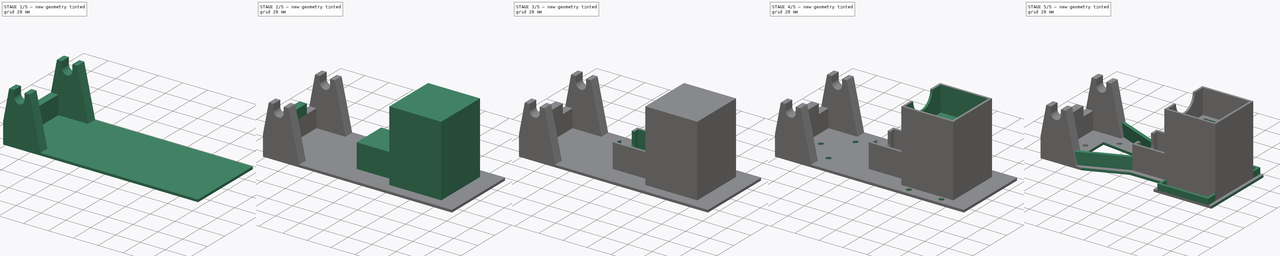
[diagram: build sequence overview — one tinted view per stage of 5, left to right]
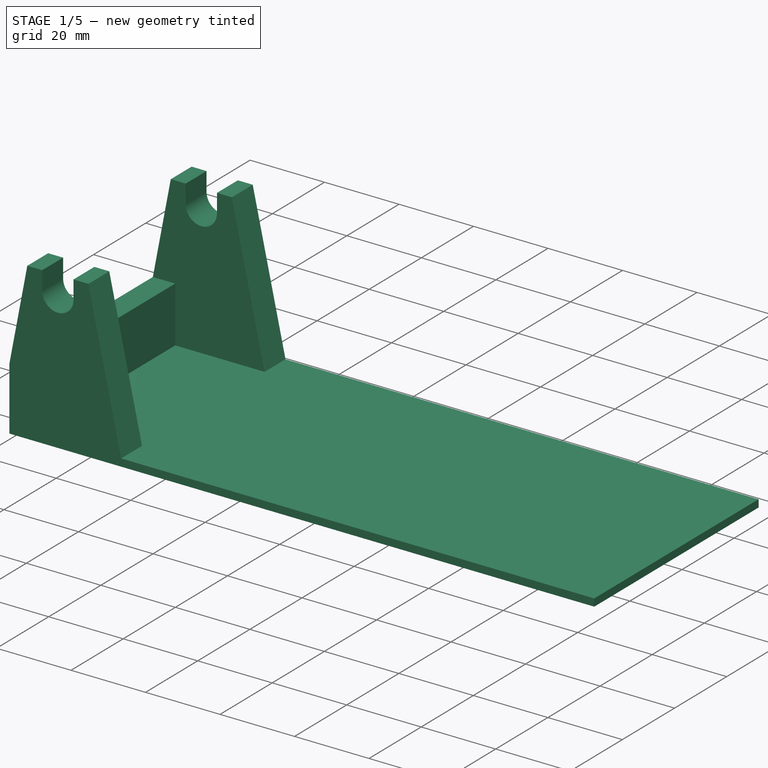
[diagram: stage 1 of 5 — iso view after this stage's code; geometry added in this stage tinted green]
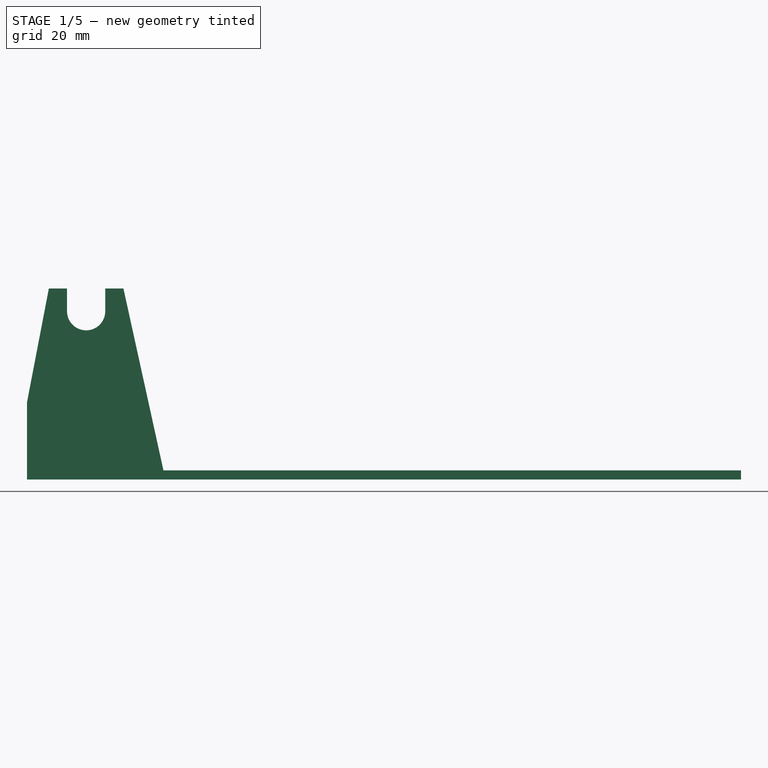
[diagram: stage 1 of 5 — front view after this stage's code; geometry added in this stage tinted green]
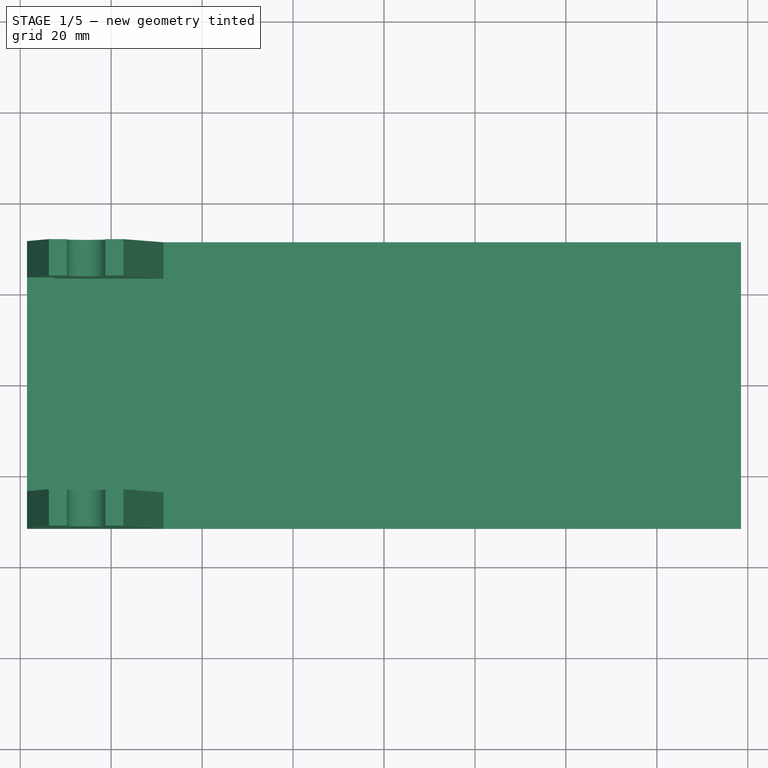
[diagram: stage 1 of 5 — top view after this stage's code; geometry added in this stage tinted green]
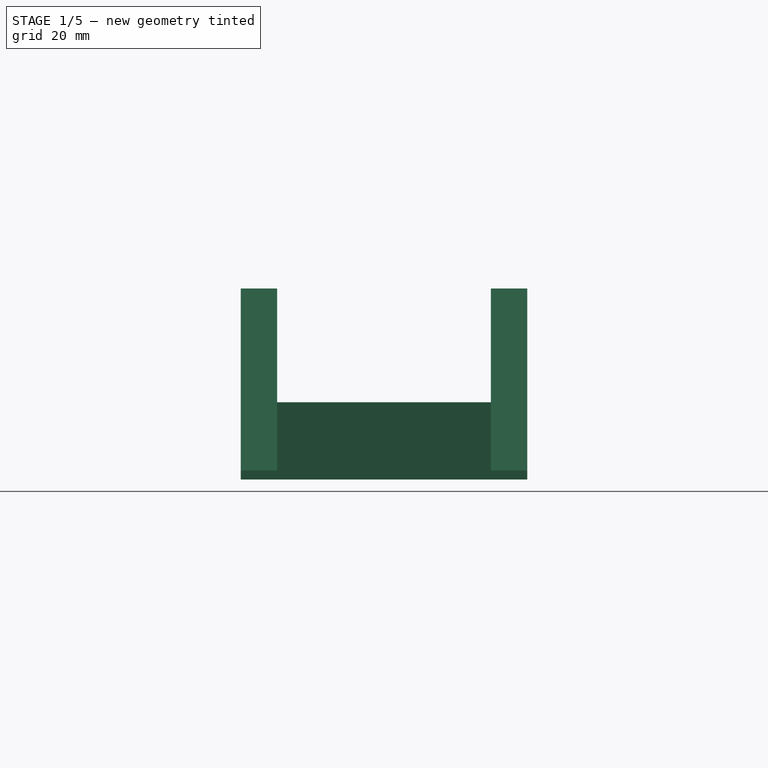
[diagram: stage 1 of 5 — right view after this stage's code; geometry added in this stage tinted green]
FCSTD DOCUMENT  (FreeCAD 0.15R4671 (Git))
Label: Assembly Tray
License: All rights reserved
LicenseURL: http://en.wikipedia.org/wiki/All_rights_reserved
objects: Sketcher::SketchObject×18, PartDesign::Pad×9, PartDesign::Pocket×9
note: 54 computed .brp shape members not serialized (recipe doc carries the construction recipe); baked Part::Feature solids carry a one-line shape summary decoded from their .brp

FEATURE [Sketcher::SketchObject] Sketch
  sketch-geometry (4):
    g0: LineSegment StartX=-78.5 StartY=31.5 StartZ=0 EndX=78.5 EndY=31.5 EndZ=0
    g1: LineSegment StartX=78.5 StartY=31.5 StartZ=0 EndX=78.5 EndY=-31.5 EndZ=0
    g2: LineSegment StartX=78.5 StartY=-31.5 StartZ=0 EndX=-78.5 EndY=-31.5 EndZ=0
    g3: LineSegment StartX=-78.5 StartY=-31.5 StartZ=0 EndX=-78.5 EndY=31.5 EndZ=0
  constraints (12):
    c: Coincident(g0,g1)
    c: Coincident(g1,g2)
    c: Coincident(g2,g3)
    c: Coincident(g3,g0)
    c: Horizontal(g0)
    c: Horizontal(g2)
    c: Vertical(g1)
    c: Vertical(g3)
    c: Symmetric(g0,g2,g-1)
    c: Symmetric(g0,g0,g-2)
    c: DistanceY(g3) = 63
    c: DistanceX(g0) = 157
FEATURE [PartDesign::Pad] Pad
  Length = 2
  Length2 = 100
  Sketch = -> Sketch
  Type = 0
FEATURE [Sketcher::SketchObject] Sketch001
  ExternalGeometry = -> [Pad]
  Placement = pos=(0,0,2) rot=(0,0,1;0rad)
  Support = -> Pad [Face6]
  sketch-geometry (8):
    g0: LineSegment StartX=-78.5 StartY=31.5 StartZ=0 EndX=-48.5 EndY=31.5 EndZ=0
    g1: LineSegment StartX=-48.5 StartY=31.5 StartZ=0 EndX=-48.5 EndY=23.5 EndZ=0
    g2: LineSegment StartX=-48.5 StartY=23.5 StartZ=0 EndX=-78.5 EndY=23.5 EndZ=0
    g3: LineSegment StartX=-78.5 StartY=23.5 StartZ=0 EndX=-78.5 EndY=31.5 EndZ=0
    g4: LineSegment StartX=-78.5 StartY=-23.5 StartZ=0 EndX=-48.5 EndY=-23.5 EndZ=0
    g5: LineSegment StartX=-48.5 StartY=-23.5 StartZ=0 EndX=-48.5 EndY=-31.5 EndZ=0
    g6: LineSegment StartX=-48.5 StartY=-31.5 StartZ=0 EndX=-78.5 EndY=-31.5 EndZ=0
    g7: LineSegment StartX=-78.5 StartY=-31.5 StartZ=0 EndX=-78.5 EndY=-23.5 EndZ=0
  constraints (23):
    c: Coincident(g0,g1)
    c: Coincident(g1,g2)
    c: Coincident(g2,g3)
    c: Coincident(g3,g0)
    c: Horizontal(g0)
    c: Horizontal(g2)
    c: Vertical(g1)
    c: Vertical(g3)
    c: Coincident(g4,g5)
    c: Coincident(g5,g6)
    c: Coincident(g6,g7)
    c: Coincident(g7,g4)
    c: Horizontal(g4)
    c: Horizontal(g6)
    c: Vertical(g5)
    c: Vertical(g7)
    c: Equal(g4,g2)
    c: Equal(g1,g5)
    c: Symmetric(g1,g4,g-1)
    c: DistanceY(g1) = -8
    c: DistanceY(g1,g4) = -47
    c: DistanceX(g0) = 30
    c: PointOnObject(g0,g-3)
FEATURE [PartDesign::Pad] Pad001
  Length = 40
  Length2 = 100
  Sketch = -> Sketch001
  Type = 0
FEATURE [Sketcher::SketchObject] Sketch002
  ExternalGeometry = -> [Pad001]
  Placement = pos=(0,0,2) rot=(0,0,1;0rad)
  Support = -> Pad001 [Face7]
  sketch-geometry (4):
    g0: LineSegment StartX=-78.5 StartY=23.5 StartZ=0 EndX=-72.5 EndY=23.5 EndZ=0
    g1: LineSegment StartX=-72.5 StartY=23.5 StartZ=0 EndX=-72.5 EndY=-23.5 EndZ=0
    g2: LineSegment StartX=-72.5 StartY=-23.5 StartZ=0 EndX=-78.5 EndY=-23.5 EndZ=0
    g3: LineSegment StartX=-78.5 StartY=-23.5 StartZ=0 EndX=-78.5 EndY=23.5 EndZ=0
  constraints (11):
    c: Coincident(g0,g1)
    c: Coincident(g1,g2)
    c: Coincident(g2,g3)
    c: Coincident(g3,g0)
    c: Horizontal(g0)
    c: Horizontal(g2)
    c: Vertical(g1)
    c: Vertical(g3)
    c: Coincident(g0,g-4)
    c: PointOnObject(g1,g-5)
    c: DistanceX(g2) = -6
FEATURE [PartDesign::Pad] Pad002
  Length = 15
  Length2 = 100
  Sketch = -> Sketch002
  Type = 0
FEATURE [Sketcher::SketchObject] Sketch004
  Placement = pos=(0,-31.5,0) rot=(1,0,0;1.5708rad)
  Support = -> Pad002 [Face8]
  sketch-geometry (10):
    g0: LineSegment StartX=-69.7 StartY=42 StartZ=0 EndX=-69.7 EndY=37 EndZ=0
    g1: LineSegment StartX=-69.7 StartY=42 StartZ=0 EndX=-61.3 EndY=42 EndZ=0
    g2: LineSegment StartX=-61.3 StartY=42 StartZ=0 EndX=-61.3 EndY=37 EndZ=0
    g3: ArcOfCircle CenterX=-65.5 CenterY=37 CenterZ=0 NormalX=0 NormalY=0 NormalZ=1 Radius=4.2 StartAngle=3.14159 EndAngle=6.28318
    g4: LineSegment StartX=-57.3 StartY=42 StartZ=0 EndX=-48.5 EndY=2 EndZ=0
    g5: LineSegment StartX=-48.5 StartY=2 StartZ=0 EndX=-48.5 EndY=42 EndZ=0
    g6: LineSegment StartX=-48.5 StartY=42 StartZ=0 EndX=-57.3 EndY=42 EndZ=0
    g7: LineSegment StartX=-73.7 StartY=42 StartZ=0 EndX=-78.5 EndY=17 EndZ=0
    g8: LineSegment StartX=-78.5 StartY=17 StartZ=0 EndX=-78.5 EndY=42 EndZ=0
    g9: LineSegment StartX=-78.5 StartY=42 StartZ=0 EndX=-73.7 EndY=42 EndZ=0
  constraints (20):
    c: Vertical(g0)
    c: Coincident(g1,g0)
    c: Coincident(g2,g1)
    c: Vertical(g2)
    c: Coincident(g3,g2)
    c: Coincident(g3,g0)
    c: Tangent(g3,g2)
    c: Tangent(g3,g0)
    c: Radius(g3) = 4.2
    c: DistanceY(g3,g1) = 5
    c: Coincident(g4,g5)
    c: Vertical(g5)
    c: Coincident(g5,g6)
    c: Coincident(g6,g4)
    c: Coincident(g7,g8)
    c: Vertical(g8)
    c: Coincident(g8,g9)
    c: Coincident(g9,g7)
    c: DistanceX(g0,g7) = -4
    c: DistanceX(g1,g4) = 4
FEATURE [PartDesign::Pocket] Pocket
  Length = 5
  Sketch = -> Sketch004
  Type = 1
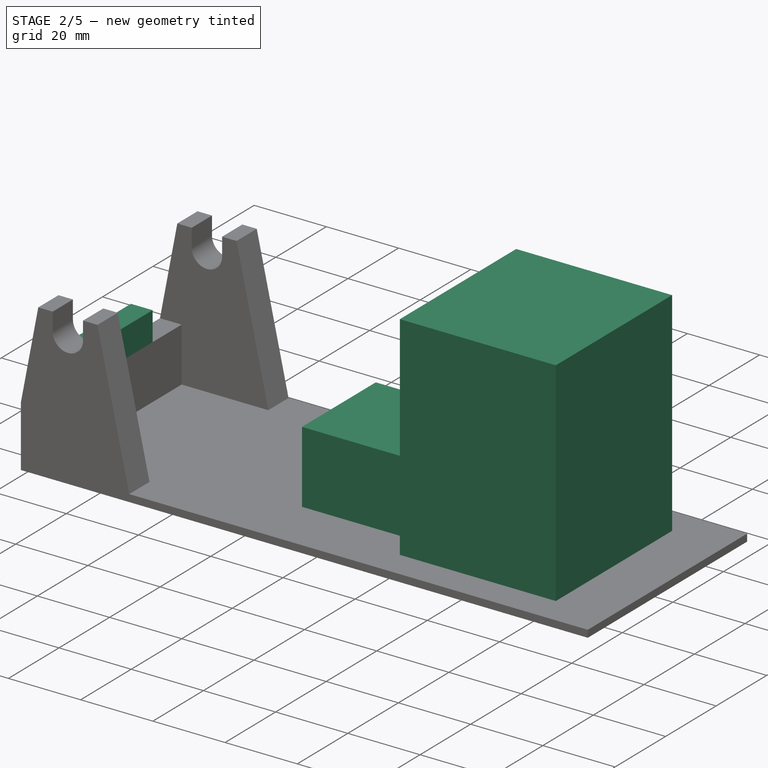
[diagram: stage 2 of 5 — iso view after this stage's code; geometry added in this stage tinted green]
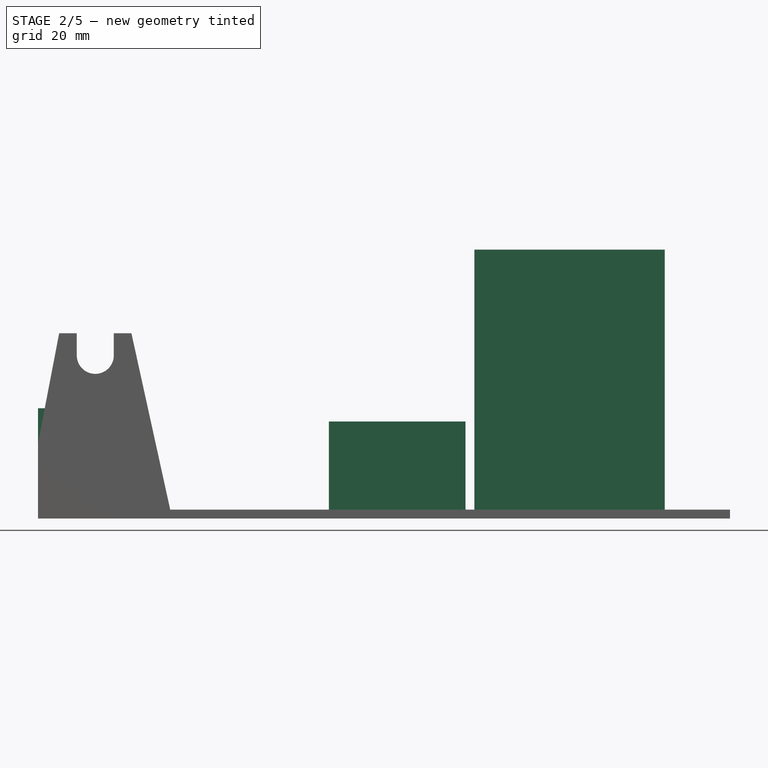
[diagram: stage 2 of 5 — front view after this stage's code; geometry added in this stage tinted green]
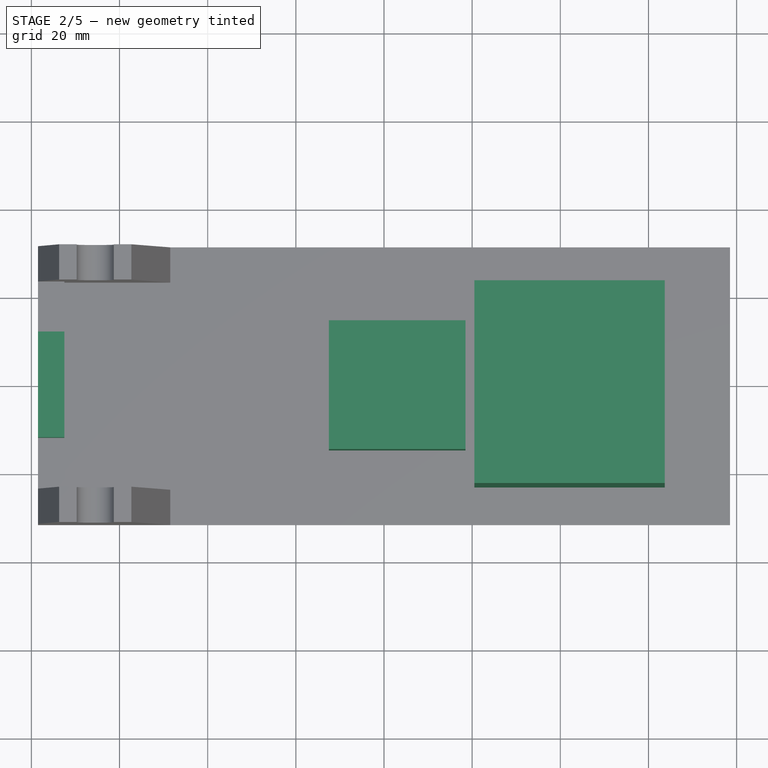
[diagram: stage 2 of 5 — top view after this stage's code; geometry added in this stage tinted green]
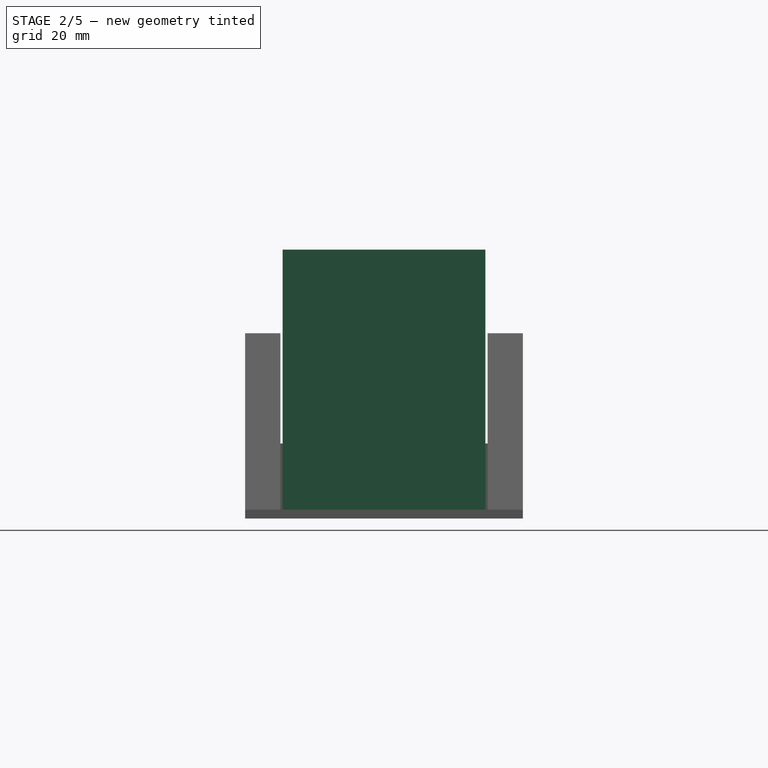
[diagram: stage 2 of 5 — right view after this stage's code; geometry added in this stage tinted green]
FEATURE [Sketcher::SketchObject] Sketch003
  ExternalGeometry = -> [Pad002]
  Placement = pos=(0,0,17) rot=(0,0,1;0rad)
  Support = -> Pocket [Face27]
  sketch-geometry (4):
    g0: LineSegment StartX=-78.5 StartY=12 StartZ=0 EndX=-72.5 EndY=12 EndZ=0
    g1: LineSegment StartX=-72.5 StartY=12 StartZ=0 EndX=-72.5 EndY=-12 EndZ=0
    g2: LineSegment StartX=-72.5 StartY=-12 StartZ=0 EndX=-78.5 EndY=-12 EndZ=0
    g3: LineSegment StartX=-78.5 StartY=-12 StartZ=0 EndX=-78.5 EndY=12 EndZ=0
  constraints (12):
    c: Coincident(g0,g1)
    c: Coincident(g1,g2)
    c: Coincident(g2,g3)
    c: Coincident(g3,g0)
    c: Horizontal(g0)
    c: Horizontal(g2)
    c: Vertical(g1)
    c: Vertical(g3)
    c: PointOnObject(g0,g-3)
    c: PointOnObject(g1,g-5)
    c: Symmetric(g1,g0,g-1)
    c: DistanceY(g3) = 24
FEATURE [PartDesign::Pad] Pad003
  Length = 8
  Length2 = 100
  Sketch = -> Sketch003
  Type = 0
FEATURE [Sketcher::SketchObject] Sketch005
  ExternalGeometry = -> [Pad003]
  Placement = pos=(0,0,2) rot=(0,0,1;0rad)
  Support = -> Pad003 [Face7]
  sketch-geometry (10):
    g0: LineSegment StartX=-12.5 StartY=14.6 StartZ=0 EndX=18.5 EndY=14.6 EndZ=0
    g1: LineSegment StartX=18.5 StartY=14.6 StartZ=0 EndX=18.5 EndY=-14.6 EndZ=0
    g2: LineSegment StartX=18.5 StartY=-14.6 StartZ=0 EndX=-12.5 EndY=-14.6 EndZ=0
    g3: LineSegment StartX=-12.5 StartY=-14.6 StartZ=0 EndX=-12.5 EndY=14.6 EndZ=0
    g4: LineSegment [constr] StartX=-69.7 StartY=23.5 StartZ=0 EndX=-65.5 EndY=23.5 EndZ=0
    g5: LineSegment [constr] StartX=-65.5 StartY=23.5 StartZ=0 EndX=-61.3 EndY=23.5 EndZ=0
    g6: LineSegment [constr] StartX=-10.5 StartY=12.6 StartZ=0 EndX=-10.5 EndY=-12.6 EndZ=0
    g7: LineSegment [constr] StartX=-10.5 StartY=12.6 StartZ=0 EndX=16.5 EndY=12.6 EndZ=0
    g8: LineSegment [constr] StartX=16.5 StartY=12.6 StartZ=0 EndX=16.5 EndY=-12.6 EndZ=0
    g9: LineSegment [constr] StartX=16.5 StartY=-12.6 StartZ=0 EndX=-10.5 EndY=-12.6 EndZ=0
  constraints (29):
    c: Coincident(g0,g1)
    c: Coincident(g1,g2)
    c: Coincident(g2,g3)
    c: Coincident(g3,g0)
    c: Horizontal(g0)
    c: Horizontal(g2)
    c: Vertical(g1)
    c: Vertical(g3)
    c: Coincident(g4,g-3)
    c: Coincident(g5,g4)
    c: Coincident(g5,g-4)
    c: Horizontal(g5)
    c: Equal(g4,g5)
    c: Symmetric(g2,g0,g-1)
    c: Vertical(g6)
    c: Symmetric(g6,g6,g-1)
    c: Distance(g6) = 25.2
    c: DistanceX(g4,g6) = 55
    c: DistanceX(g6,g2) = -2
    c: Horizontal(g7)
    c: Coincident(g8,g7)
    c: Vertical(g8)
    c: Coincident(g9,g8)
    c: Coincident(g9,g6)
    c: Horizontal(g9)
    c: DistanceX(g7) = 27
    c: Coincident(g7,g6)
    c: DistanceX(g7,g0) = 2
    c: DistanceY(g7,g0) = 2
FEATURE [PartDesign::Pad] Pad004
  Length = 20
  Length2 = 100
  Sketch = -> Sketch005
  Type = 0
FEATURE [Sketcher::SketchObject] Sketch006
  ExternalGeometry = -> [Pad004]
  Placement = pos=(0,0,2) rot=(0,0,1;0rad)
  Support = -> Pad004 [Face7]
  sketch-geometry (10):
    g0: LineSegment [constr] StartX=-69.7 StartY=23.5 StartZ=0 EndX=-65.5 EndY=23.5 EndZ=0
    g1: LineSegment [constr] StartX=-65.5 StartY=23.5 StartZ=0 EndX=-61.3 EndY=23.5 EndZ=0
    g2: LineSegment [constr] StartX=22.5 StartY=21 StartZ=0 EndX=61.7 EndY=21 EndZ=0
    g3: LineSegment [constr] StartX=61.7 StartY=21 StartZ=0 EndX=61.7 EndY=-21 EndZ=0
    g4: LineSegment [constr] StartX=61.7 StartY=-21 StartZ=0 EndX=22.5 EndY=-21 EndZ=0
    g5: LineSegment [constr] StartX=22.5 StartY=-21 StartZ=0 EndX=22.5 EndY=21 EndZ=0
    g6: LineSegment StartX=20.5 StartY=23 StartZ=0 EndX=63.7 EndY=23 EndZ=0
    g7: LineSegment StartX=63.7 StartY=23 StartZ=0 EndX=63.7 EndY=-23 EndZ=0
    g8: LineSegment StartX=63.7 StartY=-23 StartZ=0 EndX=20.5 EndY=-23 EndZ=0
    g9: LineSegment StartX=20.5 StartY=-23 StartZ=0 EndX=20.5 EndY=23 EndZ=0
  constraints (29):
    c: Coincident(g0,g-3)
    c: Horizontal(g0)
    c: Coincident(g1,g0)
    c: Coincident(g1,g-4)
    c: Equal(g0,g1)
    c: Coincident(g2,g3)
    c: Coincident(g3,g4)
    c: Coincident(g4,g5)
    c: Coincident(g5,g2)
    c: Horizontal(g2)
    c: Horizontal(g4)
    c: Vertical(g3)
    c: Vertical(g5)
    c: DistanceX(g2) = 39.2
    c: Symmetric(g2,g4,g-1)
    c: DistanceY(g5) = 42
    c: DistanceX(g2,g0) = -88
    c: Coincident(g6,g7)
    c: Coincident(g7,g8)
    c: Coincident(g8,g9)
    c: Coincident(g9,g6)
    c: Horizontal(g6)
    c: Horizontal(g8)
    c: Vertical(g7)
    c: Vertical(g9)
    c: DistanceY(g2,g6) = 2
    c: DistanceX(g2,g6) = 2
    c: DistanceY(g8,g4) = 2
    c: DistanceX(g8,g4) = 2
FEATURE [PartDesign::Pad] Pad005
  Length = 59
  Length2 = 100
  Sketch = -> Sketch006
  Type = 0
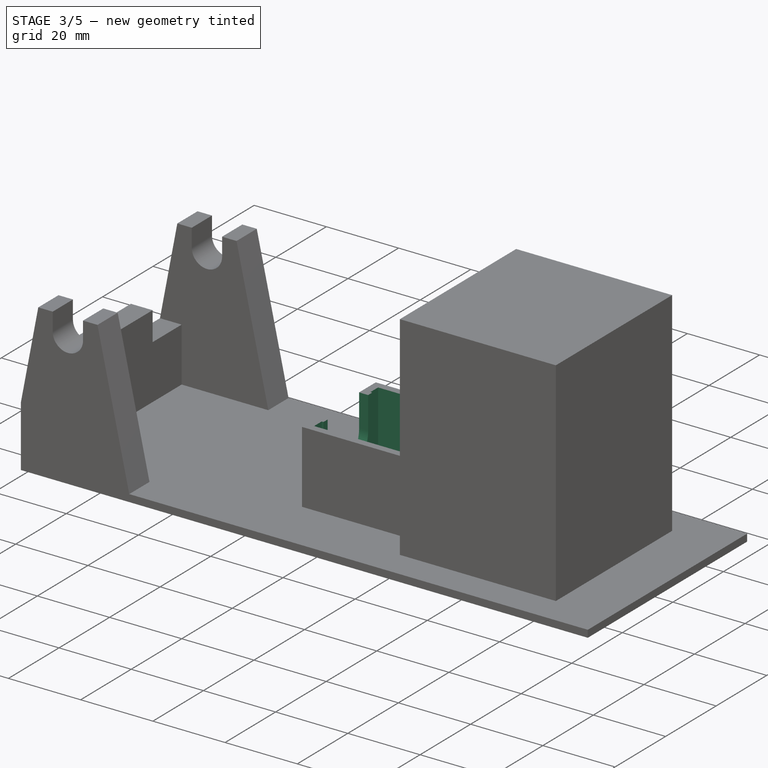
[diagram: stage 3 of 5 — iso view after this stage's code; geometry added in this stage tinted green]
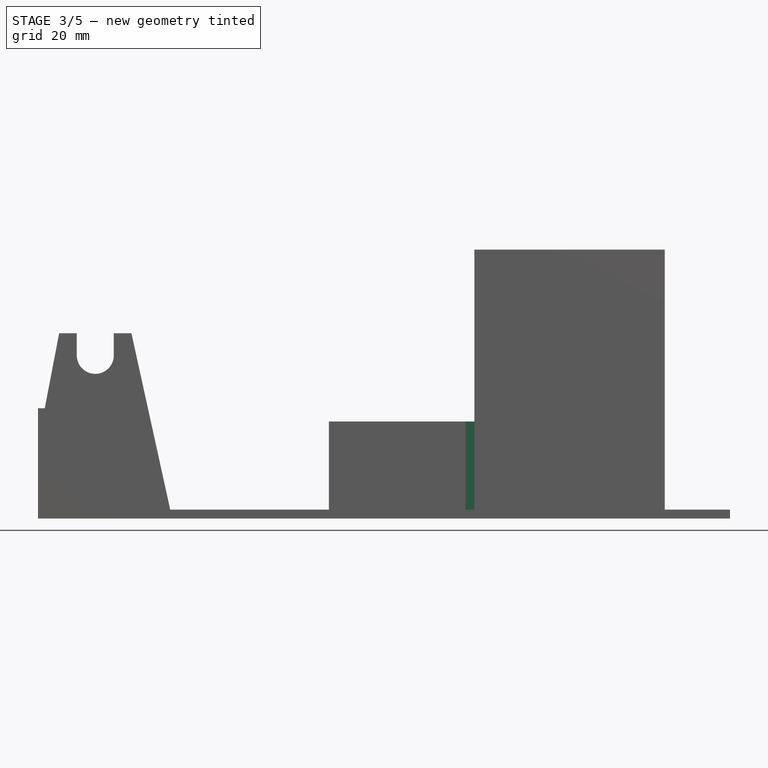
[diagram: stage 3 of 5 — front view after this stage's code; geometry added in this stage tinted green]
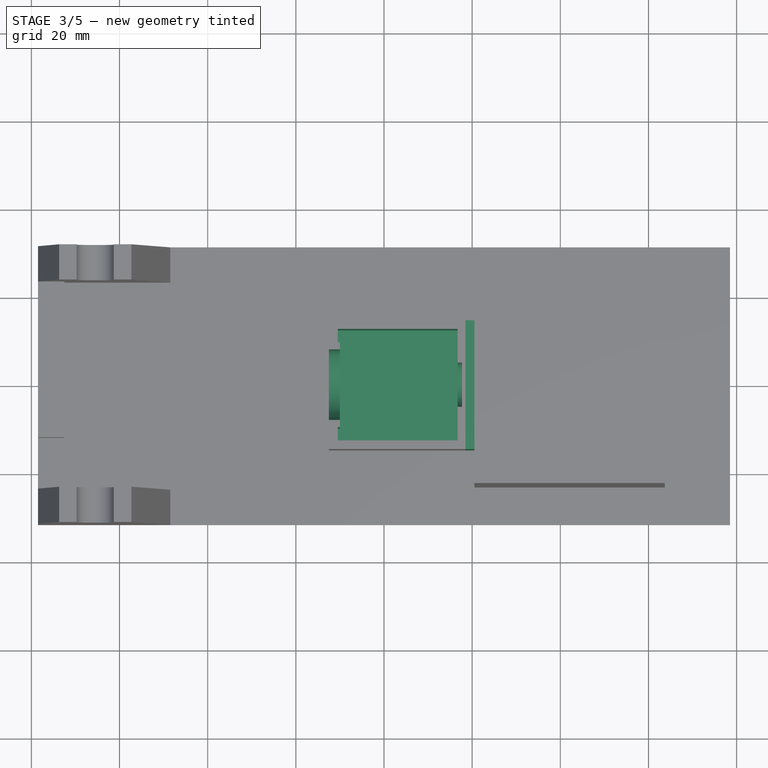
[diagram: stage 3 of 5 — top view after this stage's code; geometry added in this stage tinted green]
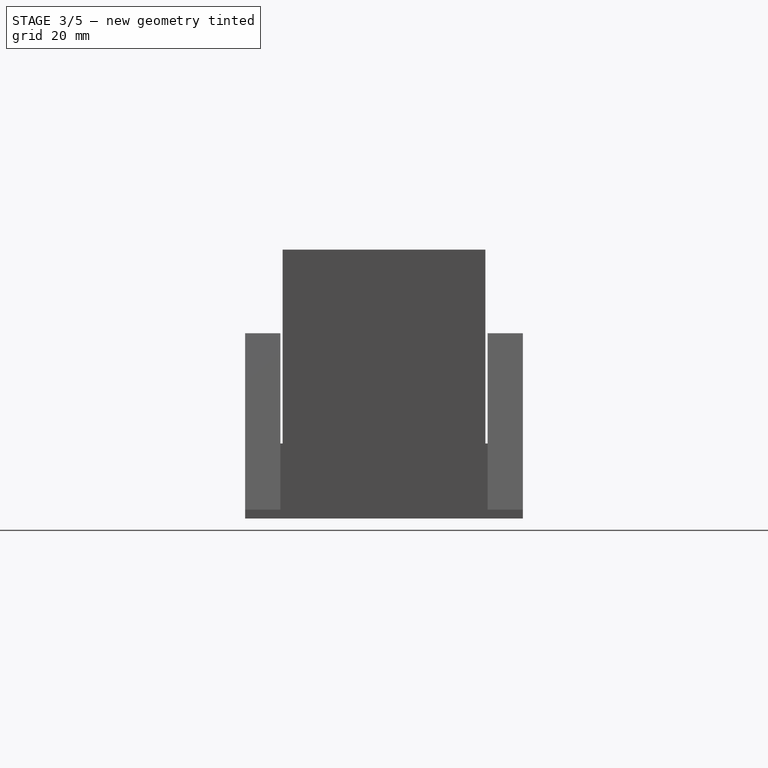
[diagram: stage 3 of 5 — right view after this stage's code; geometry added in this stage tinted green]
FEATURE [Sketcher::SketchObject] Sketch007
  ExternalGeometry = -> [Pad003]
  Placement = pos=(0,0,22) rot=(0,0,1;0rad)
  Support = -> Pad005 [Face42]
  sketch-geometry (14):
    g0: LineSegment [constr] StartX=-69.7 StartY=23.5 StartZ=0 EndX=-65.5 EndY=23.5 EndZ=0
    g1: LineSegment [constr] StartX=-65.5 StartY=23.5 StartZ=0 EndX=-61.3 EndY=23.5 EndZ=0
    g2: LineSegment [constr] StartX=-10.5 StartY=12.65 StartZ=0 EndX=-10.5 EndY=-12.65 EndZ=0
    g3: LineSegment [constr] StartX=-10.5 StartY=12.65 StartZ=0 EndX=16.7 EndY=12.65 EndZ=0
    g4: LineSegment [constr] StartX=16.7 StartY=12.65 StartZ=0 EndX=16.7 EndY=-12.65 EndZ=0
    g5: LineSegment [constr] StartX=16.7 StartY=-12.65 StartZ=0 EndX=-10.5 EndY=-12.65 EndZ=0
    g6: LineSegment StartX=-10.5 StartY=12.65 StartZ=0 EndX=-10.5 EndY=9.65 EndZ=0
    g7: LineSegment StartX=-10.5 StartY=9.65 StartZ=0 EndX=-10 EndY=9.65 EndZ=0
    g8: LineSegment StartX=-10 StartY=9.65 StartZ=0 EndX=-10 EndY=-9.65 EndZ=0
    g9: LineSegment StartX=-10 StartY=-9.65 StartZ=0 EndX=-10.5 EndY=-9.65 EndZ=0
    g10: LineSegment StartX=-10.5 StartY=-9.65 StartZ=0 EndX=-10.5 EndY=-12.65 EndZ=0
    g11: LineSegment StartX=-10.5 StartY=-12.65 StartZ=0 EndX=16.7 EndY=-12.65 EndZ=0
    g12: LineSegment StartX=16.7 StartY=-12.65 StartZ=0 EndX=16.7 EndY=12.65 EndZ=0
    g13: LineSegment StartX=16.7 StartY=12.65 StartZ=0 EndX=-10.5 EndY=12.65 EndZ=0
  constraints (36):
    c: Coincident(g0,g-3)
    c: Coincident(g1,g0)
    c: Coincident(g1,g-4)
    c: Horizontal(g1)
    c: Equal(g0,g1)
    c: Symmetric(g2,g2,g-1)
    c: Distance(g2) = 25.3
    c: DistanceX(g0,g2) = 55
    c: Horizontal(g3)
    c: Coincident(g4,g3)
    c: Vertical(g4)
    c: Coincident(g5,g4)
    c: Coincident(g5,g2)
    c: Horizontal(g5)
    c: DistanceX(g3) = 27.2
    c: Coincident(g3,g2)
    c: Coincident(g2,g6)
    c: PointOnObject(g6,g2)
    c: Coincident(g6,g7)
    c: Horizontal(g7)
    c: Coincident(g7,g8)
    c: Vertical(g8)
    c: Coincident(g8,g9)
    c: PointOnObject(g9,g2)
    c: Coincident(g9,g10)
    c: Coincident(g10,g2)
    c: Coincident(g10,g11)
    c: Coincident(g11,g4)
    c: Coincident(g11,g12)
    c: Coincident(g12,g3)
    c: Coincident(g12,g13)
    c: Coincident(g13,g6)
    c: DistanceY(g6) = -3
    c: Symmetric(g7,g8,g-1)
    c: DistanceX(g7) = 0.5
    c: Horizontal(g9)
FEATURE [PartDesign::Pocket] Pocket001
  Length = 20
  Sketch = -> Sketch007
  Type = 0
FEATURE [Sketcher::SketchObject] Sketch008
  ExternalGeometry = -> [Pocket001]
  Placement = pos=(-12.5,0,0) rot=(0.57735,-0.57735,-0.57735;2.0944rad)
  Support = -> Pocket001 [Face27]
  sketch-geometry (4):
    g0: LineSegment StartX=8 StartY=22 StartZ=0 EndX=8 EndY=13 EndZ=0
    g1: LineSegment StartX=8 StartY=22 StartZ=0 EndX=-8 EndY=22 EndZ=0
    g2: LineSegment StartX=-8 StartY=22 StartZ=0 EndX=-8 EndY=13 EndZ=0
    g3: ArcOfCircle CenterX=0 CenterY=13 CenterZ=0 NormalX=0 NormalY=0 NormalZ=1 Radius=8 StartAngle=3.1416 EndAngle=6.28318
  constraints (14):
    c: PointOnObject(g0,g-3)
    c: Vertical(g0)
    c: PointOnObject(g1,g0)
    c: Horizontal(g1)
    c: PointOnObject(g2,g-3)
    c: Vertical(g2)
    c: Coincident(g1,g2)
    c: PointOnObject(g3,g-2)
    c: Coincident(g2,g3)
    c: Coincident(g0,g3)
    c: Symmetric(g0,g2,g-2)
    c: Radius(g3) = 8
    c: DistanceY(g3,g-4) = -11
    c: Tangent(g3,g0)
FEATURE [PartDesign::Pocket] Pocket002
  Length = 5
  Sketch = -> Sketch008
  Type = 0
FEATURE [Sketcher::SketchObject] Sketch009
  Placement = pos=(16.7,0,0) rot=(0.57735,-0.57735,-0.57735;2.0944rad)
  Support = -> Pocket002 [Face54]
  sketch-geometry (4):
    g0: LineSegment StartX=-5 StartY=22 StartZ=0 EndX=5 EndY=22 EndZ=0
    g1: LineSegment StartX=5 StartY=22 StartZ=0 EndX=5 EndY=13 EndZ=0
    g2: LineSegment StartX=-5 StartY=13 StartZ=0 EndX=-5 EndY=22 EndZ=0
    g3: ArcOfCircle CenterX=0 CenterY=13 CenterZ=0 NormalX=0 NormalY=0 NormalZ=1 Radius=5 StartAngle=3.14159 EndAngle=6.28318
FEATURE [PartDesign::Pocket] Pocket003
  Length = 1
  Sketch = -> Sketch009
  Type = 0
FEATURE [Sketcher::SketchObject] Sketch010
  ExternalGeometry = -> [Pocket003]
  Placement = pos=(0,0,2) rot=(0,0,1;0rad)
  Support = -> Pocket003 [Face7]
  sketch-geometry (4):
    g0: LineSegment StartX=18.5 StartY=14.6 StartZ=0 EndX=20.5 EndY=14.6 EndZ=0
    g1: LineSegment StartX=20.5 StartY=14.6 StartZ=0 EndX=20.5 EndY=-14.6 EndZ=0
    g2: LineSegment StartX=20.5 StartY=-14.6 StartZ=0 EndX=18.5 EndY=-14.6 EndZ=0
    g3: LineSegment StartX=18.5 StartY=-14.6 StartZ=0 EndX=18.5 EndY=14.6 EndZ=0
  constraints (11):
    c: Coincident(g0,g1)
    c: Coincident(g1,g2)
    c: Coincident(g2,g3)
    c: Coincident(g3,g0)
    c: Horizontal(g0)
    c: Horizontal(g2)
    c: Vertical(g1)
    c: Vertical(g3)
    c: Coincident(g0,g-4)
    c: PointOnObject(g1,g-3)
    c: Coincident(g2,g-4)
FEATURE [PartDesign::Pad] Pad006
  Length = 20
  Length2 = 100
  Sketch = -> Sketch010
  Type = 0
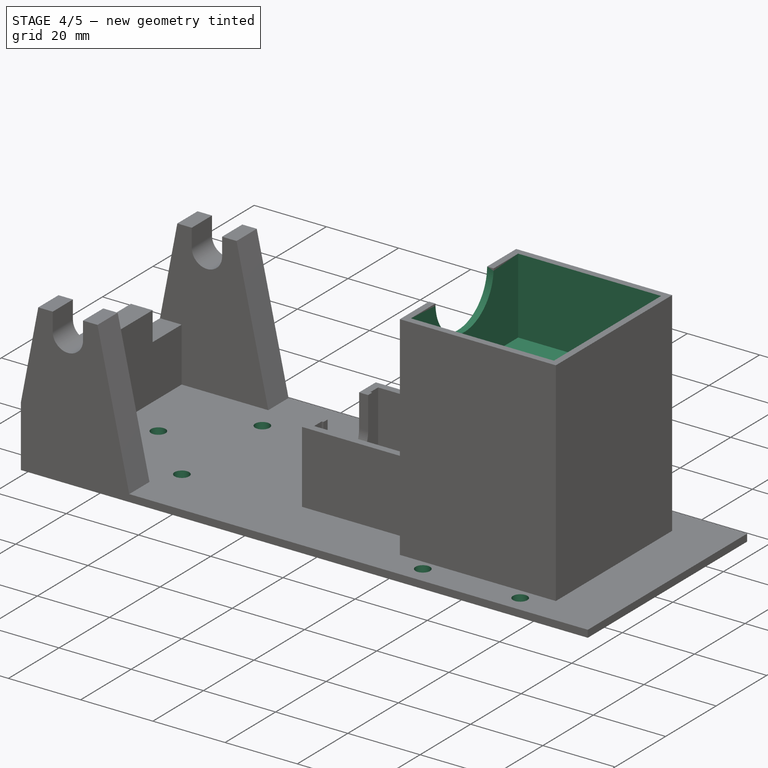
[diagram: stage 4 of 5 — iso view after this stage's code; geometry added in this stage tinted green]
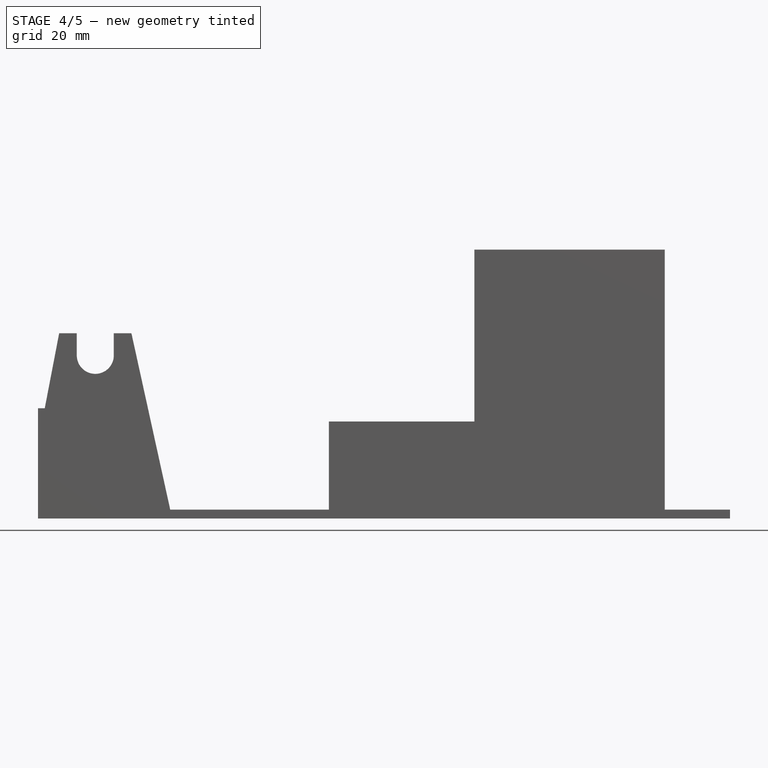
[diagram: stage 4 of 5 — front view after this stage's code; geometry added in this stage tinted green]
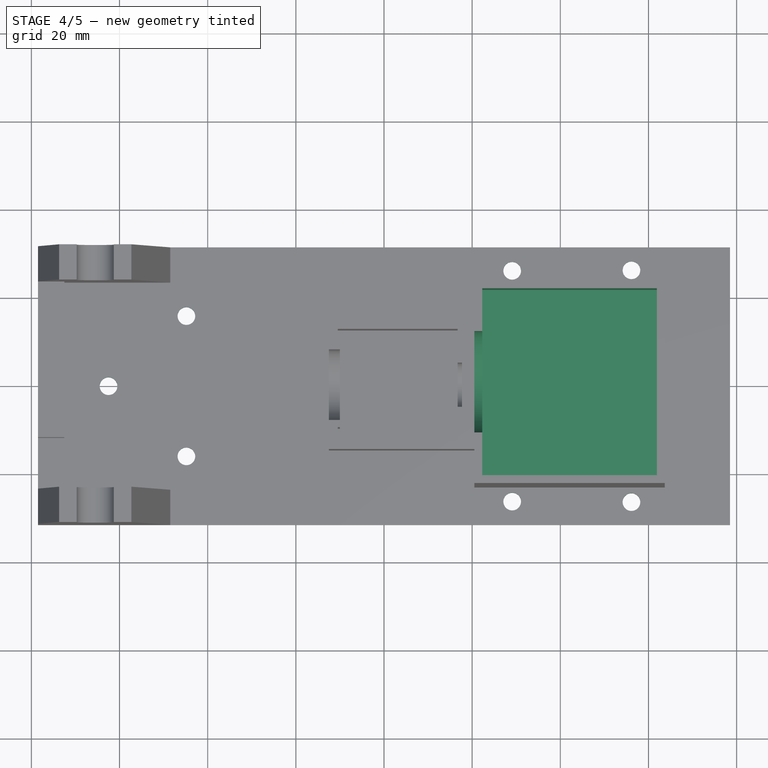
[diagram: stage 4 of 5 — top view after this stage's code; geometry added in this stage tinted green]
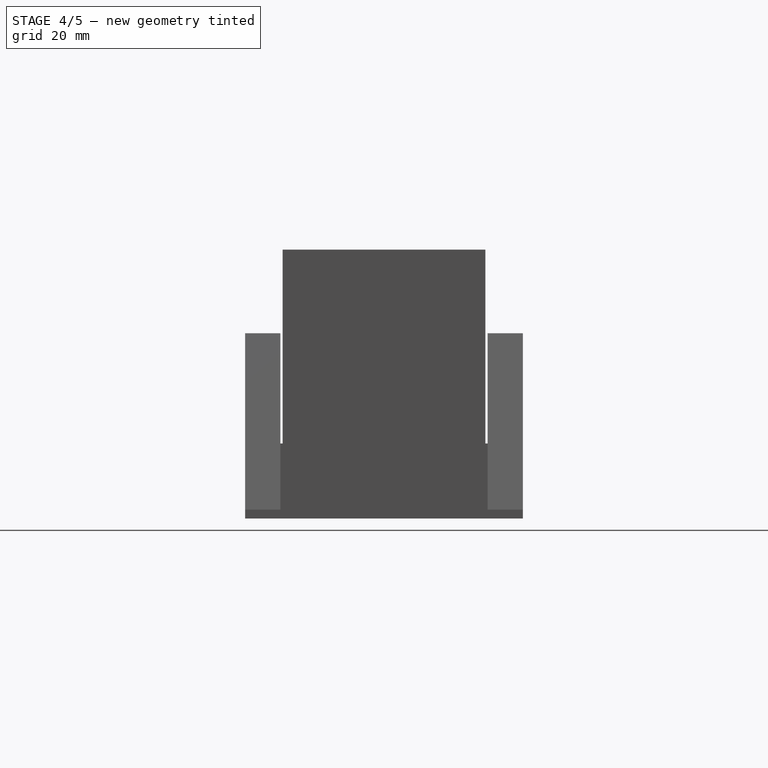
[diagram: stage 4 of 5 — right view after this stage's code; geometry added in this stage tinted green]
FEATURE [Sketcher::SketchObject] Sketch011
  ExternalGeometry = -> [Pad006]
  Placement = pos=(0,0,61) rot=(0,0,1;0rad)
  Support = -> Pad006 [Face43]
  sketch-geometry (10):
    g0: LineSegment [constr] StartX=22.5 StartY=21 StartZ=0 EndX=61.7 EndY=21 EndZ=0
    g1: LineSegment [constr] StartX=61.7 StartY=21 StartZ=0 EndX=61.7 EndY=-21 EndZ=0
    g2: LineSegment [constr] StartX=61.7 StartY=-21 StartZ=0 EndX=22.5 EndY=-21 EndZ=0
    g3: LineSegment [constr] StartX=22.5 StartY=-21 StartZ=0 EndX=22.5 EndY=21 EndZ=0
    g4: LineSegment [constr] StartX=-69.7 StartY=23.5 StartZ=0 EndX=-65.5 EndY=23.5 EndZ=0
    g5: LineSegment [constr] StartX=-65.5 StartY=23.5 StartZ=0 EndX=-61.3 EndY=23.5 EndZ=0
    g6: LineSegment StartX=22.3 StartY=21.2 StartZ=0 EndX=61.9 EndY=21.2 EndZ=0
    g7: LineSegment StartX=61.9 StartY=21.2 StartZ=0 EndX=61.9 EndY=-21.2 EndZ=0
    g8: LineSegment StartX=61.9 StartY=-21.2 StartZ=0 EndX=22.3 EndY=-21.2 EndZ=0
    g9: LineSegment StartX=22.3 StartY=-21.2 StartZ=0 EndX=22.3 EndY=21.2 EndZ=0
  constraints (29):
    c: Coincident(g0,g1)
    c: Coincident(g1,g2)
    c: Coincident(g2,g3)
    c: Coincident(g3,g0)
    c: Horizontal(g0)
    c: Horizontal(g2)
    c: Vertical(g1)
    c: Vertical(g3)
    c: Symmetric(g0,g2,g-1)
    c: Coincident(g4,g-3)
    c: Horizontal(g4)
    c: Coincident(g5,g4)
    c: Coincident(g5,g-4)
    c: Equal(g5,g4)
    c: DistanceX(g4,g0) = 88
    c: DistanceX(g0) = 39.2
    c: DistanceY(g1) = -42
    c: Coincident(g6,g7)
    c: Coincident(g7,g8)
    c: Coincident(g8,g9)
    c: Coincident(g9,g6)
    c: Horizontal(g6)
    c: Horizontal(g8)
    c: Vertical(g7)
    c: Vertical(g9)
    c: DistanceY(g0,g6) = 0.2
    c: DistanceX(g0,g6) = 0.2
    c: DistanceY(g8,g2) = 0.2
    c: DistanceX(g8,g2) = 0.2
FEATURE [PartDesign::Pocket] Pocket004
  Length = 21
  Sketch = -> Sketch011
  Type = 0
FEATURE [Sketcher::SketchObject] Sketch012
  ExternalGeometry = -> [Pocket004]
  Placement = pos=(20.5,0,0) rot=(0.57735,-0.57735,-0.57735;2.0944rad)
  Support = -> Pocket004 [Face21]
  sketch-geometry (2):
    g0: ArcOfCircle CenterX=0 CenterY=61 CenterZ=0 NormalX=0 NormalY=0 NormalZ=1 Radius=11.5 StartAngle=3.14159 EndAngle=6.28319
    g1: LineSegment StartX=-11.5 StartY=61 StartZ=0 EndX=11.5 EndY=61 EndZ=0
  constraints (7):
    c: PointOnObject(g0,g-3)
    c: PointOnObject(g0,g-3)
    c: PointOnObject(g0,g-3)
    c: Coincident(g1,g0)
    c: Coincident(g1,g0)
    c: PointOnObject(g0,g-2)
    c: Radius(g0) = 11.5
FEATURE [PartDesign::Pocket] Pocket005
  Length = 5
  Sketch = -> Sketch012
  Type = 0
FEATURE [Sketcher::SketchObject] Sketch013
  ExternalGeometry = -> [Pocket005]
  Placement = pos=(0,0,2) rot=(0,0,1;0rad)
  Support = -> Pocket005 [Face7]
  sketch-geometry (7):
    g0: Circle CenterX=-44.8297 CenterY=15.9148 CenterZ=0 NormalX=0 NormalY=0 NormalZ=1 Radius=2
    g1: Circle CenterX=-62.4977 CenterY=0 CenterZ=0 NormalX=0 NormalY=0 NormalZ=1 Radius=2
    g2: Circle CenterX=-44.8297 CenterY=-15.9148 CenterZ=0 NormalX=0 NormalY=0 NormalZ=1 Radius=2
    g3: Circle CenterX=29.0823 CenterY=-26.1841 CenterZ=0 NormalX=0 NormalY=0 NormalZ=1 Radius=2
    g4: Circle CenterX=29.0823 CenterY=26.1841 CenterZ=0 NormalX=0 NormalY=0 NormalZ=1 Radius=2
    g5: Circle CenterX=56.1395 CenterY=26.3018 CenterZ=0 NormalX=0 NormalY=0 NormalZ=1 Radius=2
    g6: Circle CenterX=56.1395 CenterY=-26.3018 CenterZ=0 NormalX=0 NormalY=0 NormalZ=1 Radius=2
  constraints (11):
    c: PointOnObject(g1,g-1)
    c: Equal(g1,g4)
    c: Equal(g4,g0)
    c: Equal(g0,g2)
    c: Equal(g2,g3)
    c: Equal(g3,g6)
    c: Equal(g6,g5)
    c: Radius(g0) = 2
    c: Symmetric(g2,g0,g-1)
    c: Symmetric(g3,g4,g-1)
    c: Symmetric(g5,g6,g-1)
FEATURE [PartDesign::Pocket] Pocket006
  Length = 5
  Sketch = -> Sketch013
  Type = 1
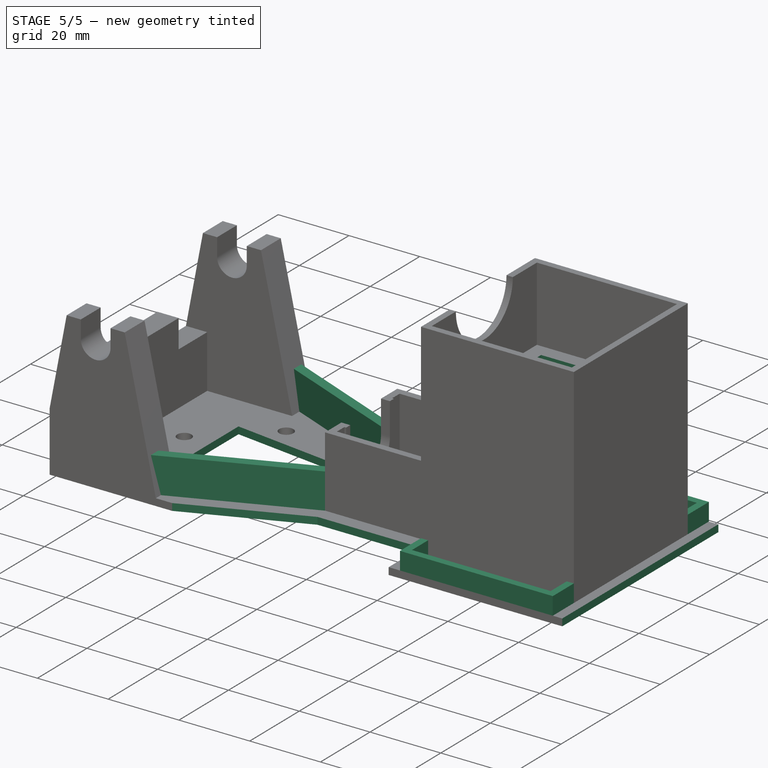
[diagram: stage 5 of 5 — iso view after this stage's code; geometry added in this stage tinted green]
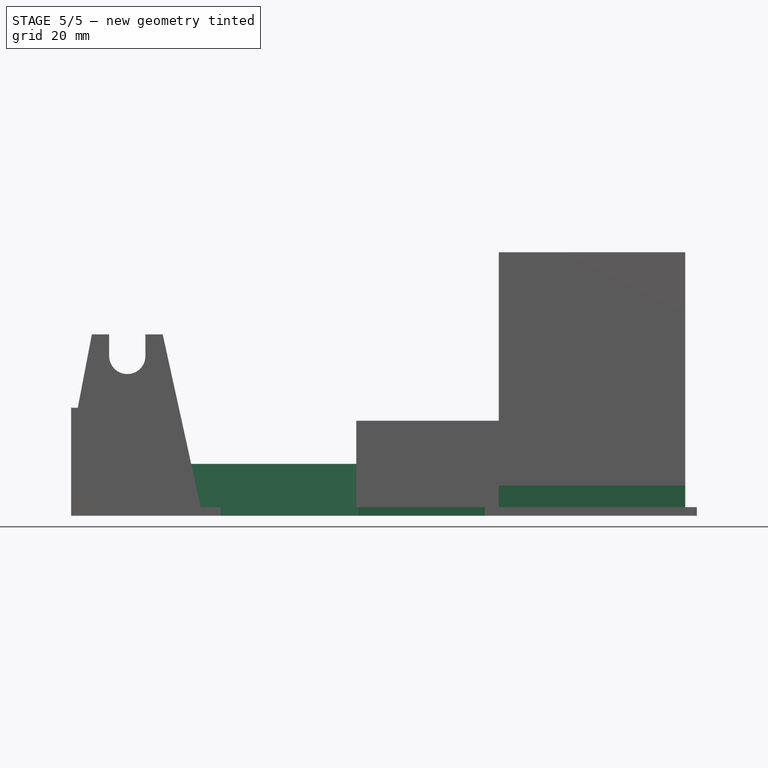
[diagram: stage 5 of 5 — front view after this stage's code; geometry added in this stage tinted green]
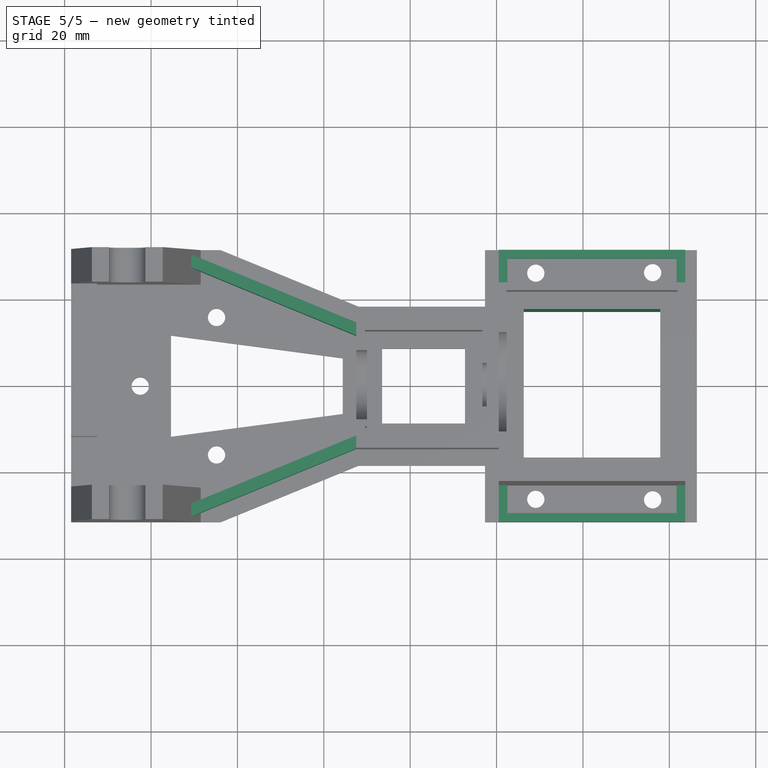
[diagram: stage 5 of 5 — top view after this stage's code; geometry added in this stage tinted green]
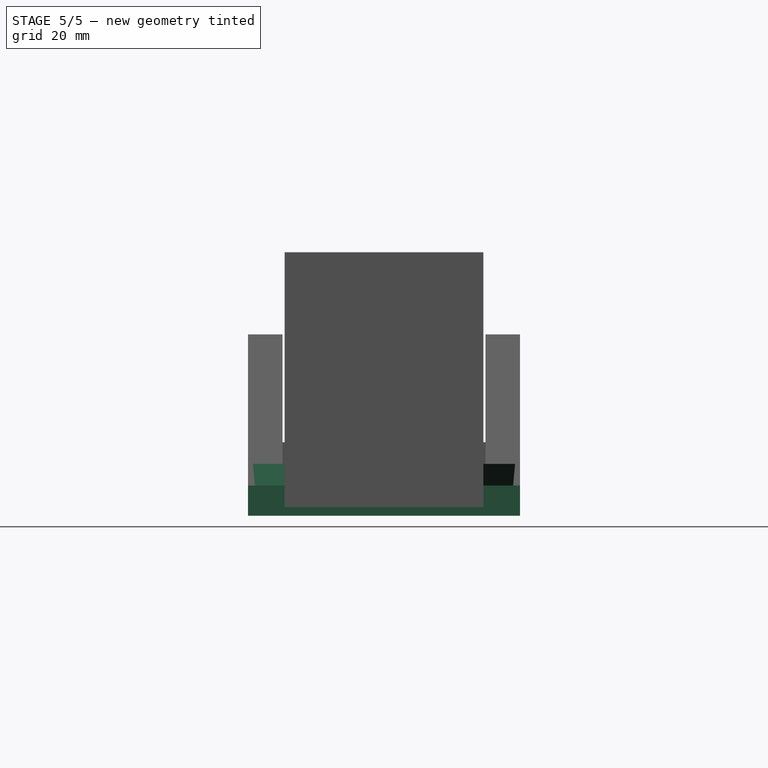
[diagram: stage 5 of 5 — right view after this stage's code; geometry added in this stage tinted green]
FEATURE [Sketcher::SketchObject] Sketch015
  ExternalGeometry = -> [Pocket006]
  Placement = pos=(0,0,2) rot=(0,0,1;0rad)
  Support = -> Pocket006 [Face14]
  sketch-geometry (12):
    g0: LineSegment StartX=-12.5 StartY=14.6 StartZ=0 EndX=-12.5 EndY=11.6 EndZ=0
    g1: LineSegment StartX=-12.5 StartY=-11.6 StartZ=0 EndX=-12.5 EndY=-14.6 EndZ=0
    g2: LineSegment StartX=-12.5 StartY=-14.6 StartZ=0 EndX=-53.5 EndY=-31.5 EndZ=0
    g3: LineSegment StartX=-53.5 StartY=-31.5 StartZ=0 EndX=-53.5 EndY=-28.5 EndZ=0
    g4: LineSegment StartX=-53.5 StartY=-28.5 StartZ=0 EndX=-12.5 EndY=-11.6 EndZ=0
    g5: LineSegment StartX=-12.5 StartY=11.6 StartZ=0 EndX=-53.5 EndY=28.5 EndZ=0
    g6: LineSegment StartX=-53.5 StartY=28.5 StartZ=0 EndX=-53.5 EndY=31.5 EndZ=0
    g7: LineSegment StartX=-53.5 StartY=31.5 StartZ=0 EndX=-12.5 EndY=14.6 EndZ=0
    g8: LineSegment StartX=-12.5 StartY=14.6 StartZ=0 EndX=-12.5 EndY=11.6 EndZ=0
    g9: LineSegment StartX=-12.5 StartY=-11.6 StartZ=0 EndX=-12.5 EndY=-14.6 EndZ=0
    g10: LineSegment [constr] StartX=-53.5 StartY=31.5 StartZ=0 EndX=-48.5 EndY=31.5 EndZ=0
    g11: LineSegment [constr] StartX=-53.5 StartY=-31.5 StartZ=0 EndX=-48.5 EndY=-31.5 EndZ=0
  constraints (32):
    c: PointOnObject(g1,g-5)
    c: Symmetric(g1,g0,g-1)
    c: Vertical(g0)
    c: Vertical(g1)
    c: Equal(g0,g1)
    c: Coincident(g2,g1)
    c: Coincident(g3,g2)
    c: Vertical(g3)
    c: Coincident(g4,g1)
    c: Coincident(g5,g0)
    c: Coincident(g6,g5)
    c: Vertical(g6)
    c: Coincident(g7,g6)
    c: Coincident(g7,g0)
    c: Coincident(g8,g0)
    c: Coincident(g8,g0)
    c: Coincident(g9,g1)
    c: Coincident(g9,g1)
    c: Equal(g8,g9)
    c: Equal(g9,g6)
    c: Equal(g6,g3)
    c: Coincident(g10,g6)
    c: Coincident(g10,g-3)
    c: Horizontal(g10)
    c: Coincident(g11,g2)
    c: Coincident(g11,g-4)
    c: Horizontal(g11)
    c: Equal(g11,g10)
    c: Coincident(g3,g4)
    c: DistanceX(g11) = 5
    c: DistanceY(g6) = 3
    c: Coincident(g0,g-5)
FEATURE [PartDesign::Pad] Pad007
  Length = 10
  Length2 = 100
  Sketch = -> Sketch015
  Type = 0
FEATURE [Sketcher::SketchObject] Sketch014
  ExternalGeometry = -> [Pocket006]
  Placement = pos=(0,0,0) rot=(1,0,0;3.14159rad)
  Support = -> Pad007 [Face1]
  sketch-geometry (8):
    g0: LineSegment StartX=-6.5 StartY=8.65 StartZ=0 EndX=12.7 EndY=8.65 EndZ=0
    g1: LineSegment StartX=12.7 StartY=8.65 StartZ=0 EndX=12.7 EndY=-8.65 EndZ=0
    g2: LineSegment StartX=12.7 StartY=-8.65 StartZ=0 EndX=-6.5 EndY=-8.65 EndZ=0
    g3: LineSegment StartX=-6.5 StartY=-8.65 StartZ=0 EndX=-6.5 EndY=8.65 EndZ=0
    g4: LineSegment StartX=26.3 StartY=17.2 StartZ=0 EndX=57.9 EndY=17.2 EndZ=0
    g5: LineSegment StartX=57.9 StartY=17.2 StartZ=0 EndX=57.9 EndY=-17.2 EndZ=0
    g6: LineSegment StartX=57.9 StartY=-17.2 StartZ=0 EndX=26.3 EndY=-17.2 EndZ=0
    g7: LineSegment StartX=26.3 StartY=-17.2 StartZ=0 EndX=26.3 EndY=17.2 EndZ=0
  constraints (24):
    c: Coincident(g0,g1)
    c: Coincident(g1,g2)
    c: Coincident(g2,g3)
    c: Coincident(g3,g0)
    c: Horizontal(g0)
    c: Horizontal(g2)
    c: Vertical(g1)
    c: Vertical(g3)
    c: DistanceY(g1,g-6) = -4
    c: DistanceX(g1,g-6) = 4
    c: DistanceY(g0,g-18) = 4
    c: DistanceX(g0,g-18) = -4
    c: Coincident(g4,g5)
    c: Coincident(g5,g6)
    c: Coincident(g6,g7)
    c: Coincident(g7,g4)
    c: Horizontal(g4)
    c: Horizontal(g6)
    c: Vertical(g5)
    c: Vertical(g7)
    c: DistanceX(g4,g-15) = -4
    c: DistanceY(g4,g-15) = 4
    c: DistanceX(g5,g-4) = 4
    c: DistanceY(g5,g-4) = -4
FEATURE [PartDesign::Pocket] Pocket007
  Length = 5
  Sketch = -> Sketch014
  Type = 1
FEATURE [Sketcher::SketchObject] Sketch016
  ExternalGeometry = -> [Pocket007]
  Placement = pos=(0,0,2) rot=(0,0,1;0rad)
  Support = -> Pocket007 [Face22]
  sketch-geometry (16):
    g0: LineSegment StartX=20.5 StartY=23 StartZ=0 EndX=20.5 EndY=31.5 EndZ=0
    g1: LineSegment StartX=20.5 StartY=31.5 StartZ=0 EndX=63.7 EndY=31.5 EndZ=0
    g2: LineSegment StartX=63.7 StartY=31.5 StartZ=0 EndX=63.7 EndY=23 EndZ=0
    g3: LineSegment StartX=63.7 StartY=23 StartZ=0 EndX=61.7 EndY=23 EndZ=0
    g4: LineSegment StartX=61.7 StartY=23 StartZ=0 EndX=61.7 EndY=29.5 EndZ=0
    g5: LineSegment StartX=61.7 StartY=29.5 StartZ=0 EndX=22.5 EndY=29.5 EndZ=0
    g6: LineSegment StartX=22.5 StartY=29.5 StartZ=0 EndX=22.5 EndY=23 EndZ=0
    g7: LineSegment StartX=22.5 StartY=23 StartZ=0 EndX=20.5 EndY=23 EndZ=0
    g8: LineSegment StartX=20.5 StartY=-23 StartZ=0 EndX=20.5 EndY=-31.5 EndZ=0
    g9: LineSegment StartX=20.5 StartY=-31.5 StartZ=0 EndX=63.7 EndY=-31.5 EndZ=0
    g10: LineSegment StartX=63.7 StartY=-31.5 StartZ=0 EndX=63.7 EndY=-23 EndZ=0
    g11: LineSegment StartX=63.7 StartY=-23 StartZ=0 EndX=61.7 EndY=-23 EndZ=0
    g12: LineSegment StartX=61.7 StartY=-23 StartZ=0 EndX=61.7 EndY=-29.5 EndZ=0
    g13: LineSegment StartX=61.7 StartY=-29.5 StartZ=0 EndX=22.5 EndY=-29.5 EndZ=0
    g14: LineSegment StartX=22.5 StartY=-29.5 StartZ=0 EndX=22.5 EndY=-23 EndZ=0
    g15: LineSegment StartX=22.5 StartY=-23 StartZ=0 EndX=20.5 EndY=-23 EndZ=0
  constraints (44):
    c: Coincident(g-3,g0)
    c: PointOnObject(g0,g-6)
    c: Vertical(g0)
    c: Coincident(g0,g1)
    c: PointOnObject(g1,g-6)
    c: Coincident(g1,g2)
    c: Coincident(g2,g-3)
    c: Vertical(g2)
    c: Coincident(g2,g3)
    c: PointOnObject(g3,g-3)
    c: Coincident(g3,g4)
    c: Vertical(g4)
    c: Coincident(g4,g5)
    c: Horizontal(g5)
    c: Coincident(g5,g6)
    c: PointOnObject(g6,g-3)
    c: Vertical(g6)
    c: Coincident(g6,g7)
    c: Coincident(g7,g0)
    c: Equal(g3,g7)
    c: DistanceX(g7) = -2
    c: DistanceY(g5,g0) = 2
    c: Coincident(g-4,g8)
    c: PointOnObject(g8,g-5)
    c: Vertical(g8)
    c: Coincident(g8,g9)
    c: PointOnObject(g9,g-5)
    c: Coincident(g9,g10)
    c: Coincident(g10,g-4)
    c: Vertical(g10)
    c: Coincident(g10,g11)
    c: PointOnObject(g11,g-4)
    c: Coincident(g11,g12)
    c: Vertical(g12)
    c: Coincident(g12,g13)
    c: Horizontal(g13)
    c: Coincident(g13,g14)
    c: Vertical(g14)
    c: Coincident(g14,g15)
    c: Coincident(g15,g8)
    c: Horizontal(g15)
    c: Equal(g3,g11)
    c: Equal(g11,g15)
    c: DistanceY(g8,g13) = 2
FEATURE [PartDesign::Pad] Pad008
  Length = 5
  Length2 = 100
  Sketch = -> Sketch016
  Type = 0
FEATURE [Sketcher::SketchObject] Sketch017
  ExternalGeometry = -> [Pad008]
  Placement = pos=(0,0,2) rot=(0,0,1;0rad)
  Support = -> Pad008 [Face22]
  sketch-geometry (16):
    g0: LineSegment StartX=-53.0303 StartY=35.2424 StartZ=0 EndX=-11.974 EndY=18.4199 EndZ=0
    g1: LineSegment StartX=-11.974 StartY=18.4199 StartZ=0 EndX=17.3183 EndY=18.4199 EndZ=0
    g2: LineSegment StartX=17.3183 StartY=18.4199 StartZ=0 EndX=17.3183 EndY=35.2424 EndZ=0
    g3: LineSegment StartX=17.3183 StartY=35.2424 StartZ=0 EndX=-53.0303 EndY=35.2424 EndZ=0
    g4: LineSegment StartX=-53.0303 StartY=-35.2424 StartZ=0 EndX=-11.974 EndY=-18.4199 EndZ=0
    g5: LineSegment StartX=-11.974 StartY=-18.4199 StartZ=0 EndX=17.3183 EndY=-18.4199 EndZ=0
    g6: LineSegment StartX=17.3183 StartY=-18.4199 StartZ=0 EndX=17.3183 EndY=-35.2424 EndZ=0
    g7: LineSegment StartX=17.3183 StartY=-35.2424 StartZ=0 EndX=-53.0303 EndY=-35.2424 EndZ=0
    g8: LineSegment StartX=88.3728 StartY=36.5364 StartZ=0 EndX=66.3741 EndY=36.5364 EndZ=0
    g9: LineSegment StartX=66.3741 StartY=36.5364 StartZ=0 EndX=66.3741 EndY=-34.871 EndZ=0
    g10: LineSegment StartX=66.3741 StartY=-34.871 StartZ=0 EndX=88.3728 EndY=-34.871 EndZ=0
    g11: LineSegment StartX=88.3728 StartY=-34.871 StartZ=0 EndX=88.3728 EndY=36.5364 EndZ=0
    g12: LineSegment StartX=-15.6209 StartY=6.44905 StartZ=0 EndX=-15.6209 EndY=-6.44905 EndZ=0
    g13: LineSegment StartX=-15.6209 StartY=-6.44905 StartZ=0 EndX=-55.3831 EndY=-11.7144 EndZ=0
    g14: LineSegment StartX=-55.3831 StartY=-11.7144 StartZ=0 EndX=-55.3831 EndY=11.7144 EndZ=0
    g15: LineSegment StartX=-55.3831 StartY=11.7144 StartZ=0 EndX=-15.6209 EndY=6.44905 EndZ=0
  constraints (33):
    c: Coincident(g0,g1)
    c: Horizontal(g1)
    c: Coincident(g1,g2)
    c: Vertical(g2)
    c: Coincident(g2,g3)
    c: Coincident(g3,g0)
    c: Horizontal(g3)
    c: Coincident(g4,g5)
    c: Horizontal(g5)
    c: Coincident(g5,g6)
    c: Vertical(g6)
    c: Coincident(g6,g7)
    c: Coincident(g7,g4)
    c: Horizontal(g7)
    c: Symmetric(g4,g0,g-1)
    c: Symmetric(g0,g4,g-1)
    c: Symmetric(g6,g2,g-1)
    c: Coincident(g8,g9)
    c: Coincident(g9,g10)
    c: Coincident(g10,g11)
    c: Coincident(g11,g8)
    c: Horizontal(g8)
    c: Horizontal(g10)
    c: Vertical(g9)
    c: Vertical(g11)
    c: Vertical(g12)
    c: Coincident(g12,g13)
    c: Coincident(g13,g14)
    c: Vertical(g14)
    c: Coincident(g14,g15)
    c: Coincident(g15,g12)
    c: Symmetric(g12,g12,g-1)
    c: Symmetric(g13,g14,g-1)
FEATURE [PartDesign::Pocket] Pocket008
  Length = 5
  Sketch = -> Sketch017
  Type = 1
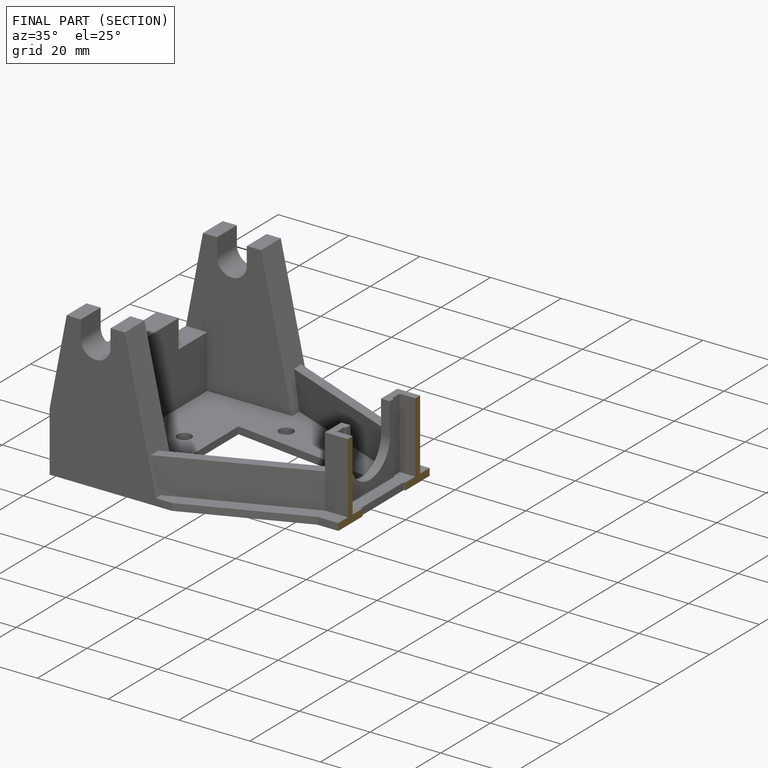
[diagram: finished part — half-section view (interior)]
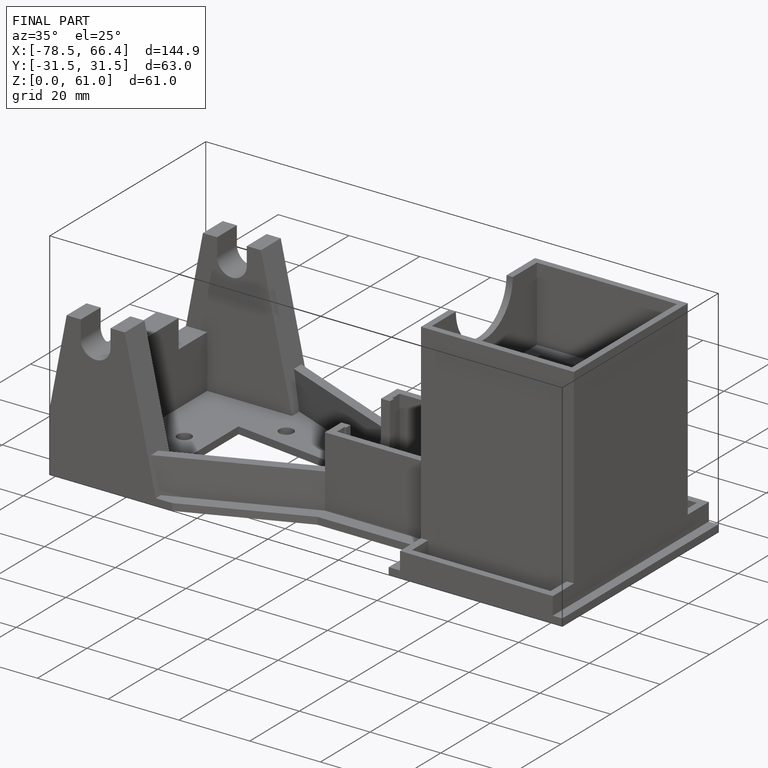
[diagram: finished part — iso view with bounding-box wireframe]
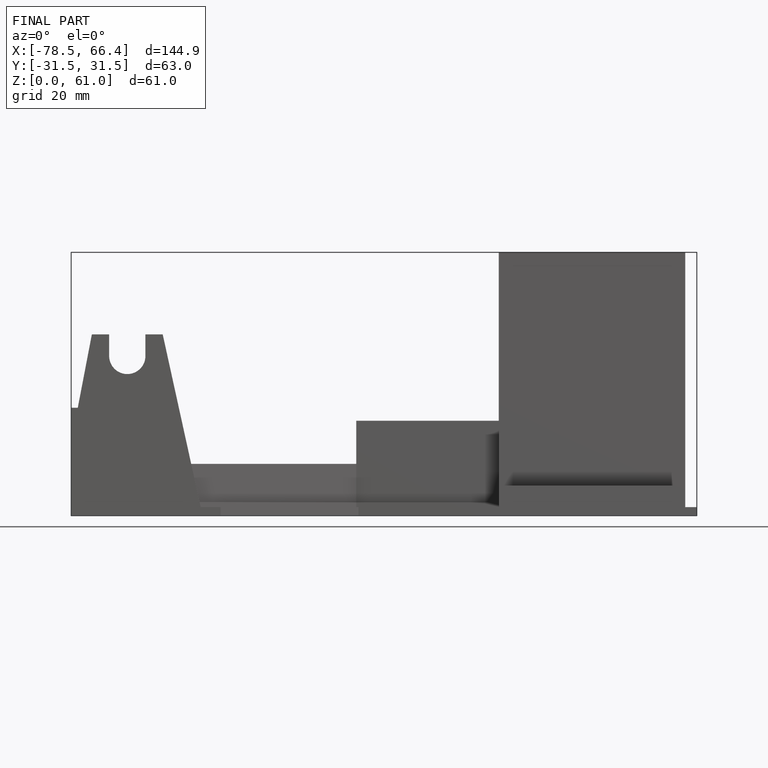
[diagram: finished part — front view with bounding-box wireframe]
